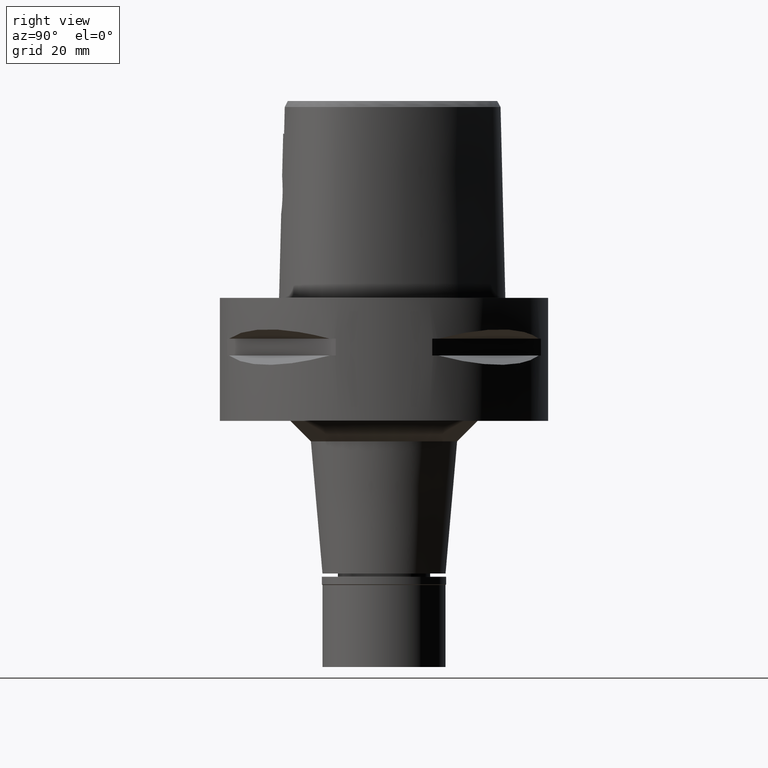
[diagram: clean part render]
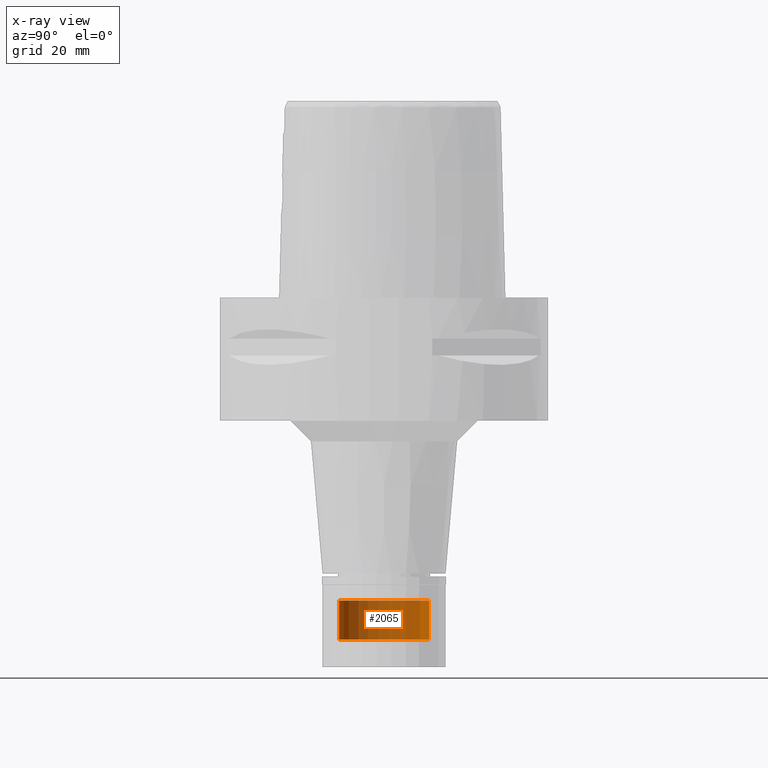
[diagram: x-ray — body ghosted, one internal face saturated and labeled with its STEP entity id]
A machine part, right view, then the same camera in x-ray: the body is ghosted and one INTERNAL B-rep face — a face not visible from any outside direction — is saturated and labeled: STEP entity #2065.
In plain terms, the highlighted cylindrical surface (partial cylindrical patch) has radius 11 mm, axis along (0, 0, -1).
Its self-contained STEP definition (entity closure, byte-faithful):
#144 = AXIS2_PLACEMENT_3D ( 'NONE', #813, #412, #1990 ) ;
#153 = CARTESIAN_POINT ( 'NONE',  ( 0.0000000000000000000, 1.275653338331999844E-14, -83.29999999999999716 ) ) ;
#359 = EDGE_CURVE ( 'NONE', #5060, #2421, #3448, .T. ) ;
#412 = DIRECTION ( 'NONE',  ( 0.0000000000000000000, 0.0000000000000000000, -1.000000000000000000 ) ) ;
#501 = CARTESIAN_POINT ( 'NONE',  ( 0.0000000000000000000, 11.00000000000000000, -73.80000000000001137 ) ) ;
#813 = CARTESIAN_POINT ( 'NONE',  ( 0.0000000000000000000, 1.275653338331999844E-14, 4.165000000000000036 ) ) ;
#1060 = CARTESIAN_POINT ( 'NONE',  ( 0.0000000000000000000, 1.275653338331999844E-14, -73.80000000000001137 ) ) ;
#1091 = VECTOR ( 'NONE', #2907, 1000.000000000000000 ) ;
#1215 = AXIS2_PLACEMENT_3D ( 'NONE', #153, #3758, #4145 ) ;
#1345 = ORIENTED_EDGE ( 'NONE', *, *, #3693, .T. ) ;
#1357 = LINE ( 'NONE', #4889, #1091 ) ;
#1422 = DIRECTION ( 'NONE',  ( 0.0000000000000000000, -1.000000000000000000, 0.0000000000000000000 ) ) ;
#1526 = VECTOR ( 'NONE', #3158, 1000.000000000000000 ) ;
#1551 = FACE_OUTER_BOUND ( 'NONE', #1647, .T. ) ;
#1564 = CARTESIAN_POINT ( 'NONE',  ( 0.0000000000000000000, 11.00000000000000000, -73.80000000000001137 ) ) ;
#1622 = CYLINDRICAL_SURFACE ( 'NONE', #144, 11.00000000000000000 ) ;
#1647 = EDGE_LOOP ( 'NONE', ( #1755, #3705, #1345, #5094 ) ) ;
#1755 = ORIENTED_EDGE ( 'NONE', *, *, #359, .T. ) ;
#1915 = VERTEX_POINT ( 'NONE', #4993 ) ;
#1990 = DIRECTION ( 'NONE',  ( 0.0000000000000000000, -1.000000000000000000, 0.0000000000000000000 ) ) ;
#2065 = ADVANCED_FACE ( 'NONE', ( #1551 ), #1622, .T. ) ;
#2286 = VERTEX_POINT ( 'NONE', #501 ) ;
#2421 = VERTEX_POINT ( 'NONE', #2837 ) ;
#2837 = CARTESIAN_POINT ( 'NONE',  ( 0.0000000000000000000, -11.00000000000000000, -83.29999999999999716 ) ) ;
#2907 = DIRECTION ( 'NONE',  ( 0.0000000000000000000, 0.0000000000000000000, -1.000000000000000000 ) ) ;
#3158 = DIRECTION ( 'NONE',  ( 0.0000000000000000000, 0.0000000000000000000, -1.000000000000000000 ) ) ;
#3183 = EDGE_CURVE ( 'NONE', #1915, #2421, #1357, .T. ) ;
#3413 = AXIS2_PLACEMENT_3D ( 'NONE', #1060, #5040, #1422 ) ;
#3448 = CIRCLE ( 'NONE', #1215, 11.00000000000000000 ) ;
#3693 = EDGE_CURVE ( 'NONE', #1915, #2286, #4251, .T. ) ;
#3705 = ORIENTED_EDGE ( 'NONE', *, *, #3183, .F. ) ;
#3758 = DIRECTION ( 'NONE',  ( 0.0000000000000000000, 0.0000000000000000000, 1.000000000000000000 ) ) ;
#4030 = CARTESIAN_POINT ( 'NONE',  ( 0.0000000000000000000, 11.00000000000000000, -83.29999999999999716 ) ) ;
#4145 = DIRECTION ( 'NONE',  ( 0.0000000000000000000, 1.000000000000000000, 0.0000000000000000000 ) ) ;
#4251 = CIRCLE ( 'NONE', #3413, 11.00000000000000000 ) ;
#4889 = CARTESIAN_POINT ( 'NONE',  ( 0.0000000000000000000, -11.00000000000000000, -73.80000000000001137 ) ) ;
#4993 = CARTESIAN_POINT ( 'NONE',  ( 0.0000000000000000000, -11.00000000000000000, -73.80000000000001137 ) ) ;
#5040 = DIRECTION ( 'NONE',  ( 0.0000000000000000000, 0.0000000000000000000, -1.000000000000000000 ) ) ;
#5060 = VERTEX_POINT ( 'NONE', #4030 ) ;
#5065 = EDGE_CURVE ( 'NONE', #2286, #5060, #5130, .T. ) ;
#5094 = ORIENTED_EDGE ( 'NONE', *, *, #5065, .T. ) ;
#5130 = LINE ( 'NONE', #1564, #1526 ) ;